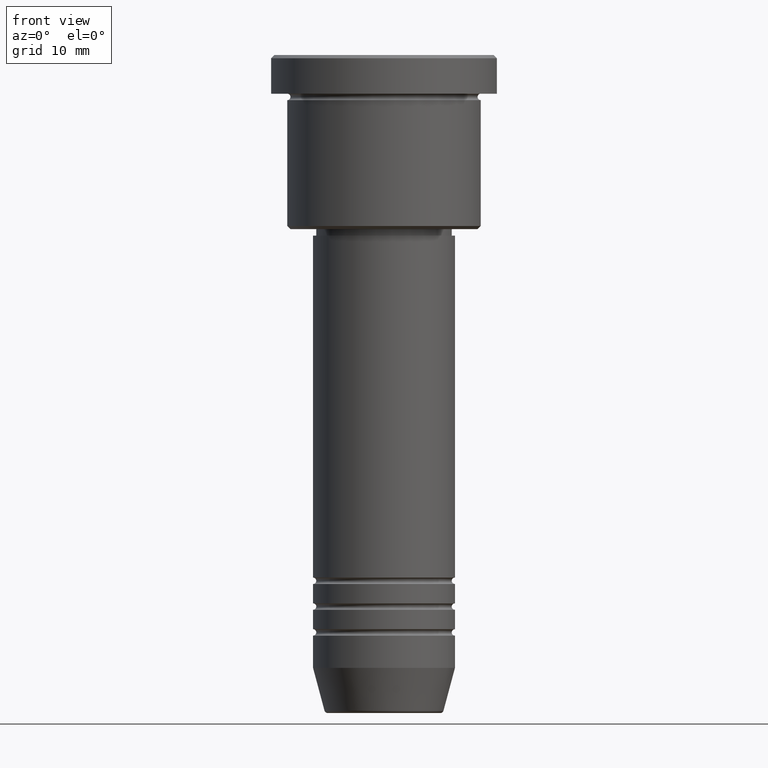
[diagram: clean part render]
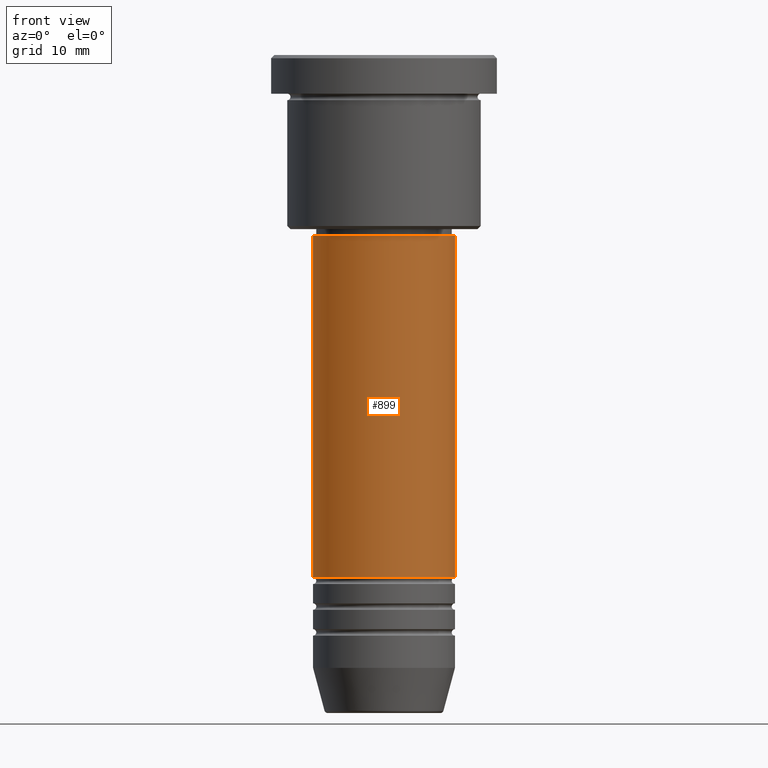
[diagram: same view with one face highlighted and labeled with its STEP entity id]
A machine part, front view. The second image highlights one B-rep face of the part: STEP entity #899.
In plain terms, the highlighted cylindrical surface (partial cylindrical patch) has radius 11 mm, axis along (-0, -0, 1).
Its self-contained STEP definition (entity closure, byte-faithful):
#207 = FACE_OUTER_BOUND ( 'NONE', #658, .T. ) ;
#270 = CARTESIAN_POINT ( 'NONE',  ( 11.00000000000000000, 0.000000000000000000, -80.99999999999988631 ) ) ;
#285 = DIRECTION ( 'NONE',  ( 1.000000000000000000, 0.000000000000000000, 0.000000000000000000 ) ) ;
#296 = AXIS2_PLACEMENT_3D ( 'NONE', #1056, #1143, #425 ) ;
#317 = AXIS2_PLACEMENT_3D ( 'NONE', #934, #1101, #285 ) ;
#336 = VECTOR ( 'NONE', #423, 1000.000000000000000 ) ;
#348 = EDGE_CURVE ( 'NONE', #826, #979, #693, .T. ) ;
#373 = CYLINDRICAL_SURFACE ( 'NONE', #317, 11.00000000000000000 ) ;
#377 = CARTESIAN_POINT ( 'NONE',  ( 11.00000000000000000, 0.000000000000000000, -27.99999999999998934 ) ) ;
#419 = CARTESIAN_POINT ( 'NONE',  ( -11.00000000000000000, 1.347111479062088405E-15, -27.99999999999998934 ) ) ;
#423 = DIRECTION ( 'NONE',  ( -0.000000000000000000, -0.000000000000000000, 1.000000000000000000 ) ) ;
#425 = DIRECTION ( 'NONE',  ( 1.000000000000000000, 0.000000000000000000, 0.000000000000000000 ) ) ;
#433 = CIRCLE ( 'NONE', #296, 11.00000000000000000 ) ;
#459 = CARTESIAN_POINT ( 'NONE',  ( 11.00000000000000000, 0.000000000000000000, 0.000000000000000000 ) ) ;
#479 = VERTEX_POINT ( 'NONE', #377 ) ;
#514 = CIRCLE ( 'NONE', #895, 11.00000000000000000 ) ;
#586 = ORIENTED_EDGE ( 'NONE', *, *, #348, .F. ) ;
#613 = EDGE_CURVE ( 'NONE', #826, #724, #433, .T. ) ;
#657 = CARTESIAN_POINT ( 'NONE',  ( -11.00000000000000000, 1.347111479062088405E-15, -80.99999999999988631 ) ) ;
#658 = EDGE_LOOP ( 'NONE', ( #586, #813, #690, #1142 ) ) ;
#664 = DIRECTION ( 'NONE',  ( -0.000000000000000000, -0.000000000000000000, 1.000000000000000000 ) ) ;
#690 = ORIENTED_EDGE ( 'NONE', *, *, #1071, .T. ) ;
#693 = LINE ( 'NONE', #1054, #336 ) ;
#724 = VERTEX_POINT ( 'NONE', #270 ) ;
#810 = EDGE_CURVE ( 'NONE', #979, #479, #514, .T. ) ;
#813 = ORIENTED_EDGE ( 'NONE', *, *, #613, .T. ) ;
#826 = VERTEX_POINT ( 'NONE', #657 ) ;
#832 = DIRECTION ( 'NONE',  ( -0.000000000000000000, -0.000000000000000000, 1.000000000000000000 ) ) ;
#844 = CARTESIAN_POINT ( 'NONE',  ( 0.000000000000000000, 0.000000000000000000, -27.99999999999998934 ) ) ;
#895 = AXIS2_PLACEMENT_3D ( 'NONE', #844, #664, #1093 ) ;
#899 = ADVANCED_FACE ( 'NONE', ( #207 ), #373, .T. ) ;
#934 = CARTESIAN_POINT ( 'NONE',  ( 0.000000000000000000, 0.000000000000000000, 0.000000000000000000 ) ) ;
#979 = VERTEX_POINT ( 'NONE', #419 ) ;
#1054 = CARTESIAN_POINT ( 'NONE',  ( -11.00000000000000000, 1.347111479062088405E-15, 0.000000000000000000 ) ) ;
#1056 = CARTESIAN_POINT ( 'NONE',  ( 0.000000000000000000, 0.000000000000000000, -80.99999999999988631 ) ) ;
#1071 = EDGE_CURVE ( 'NONE', #724, #479, #1100, .T. ) ;
#1093 = DIRECTION ( 'NONE',  ( 1.000000000000000000, 0.000000000000000000, 0.000000000000000000 ) ) ;
#1100 = LINE ( 'NONE', #459, #1141 ) ;
#1101 = DIRECTION ( 'NONE',  ( -0.000000000000000000, -0.000000000000000000, 1.000000000000000000 ) ) ;
#1141 = VECTOR ( 'NONE', #832, 1000.000000000000000 ) ;
#1142 = ORIENTED_EDGE ( 'NONE', *, *, #810, .F. ) ;
#1143 = DIRECTION ( 'NONE',  ( -0.000000000000000000, -0.000000000000000000, 1.000000000000000000 ) ) ;